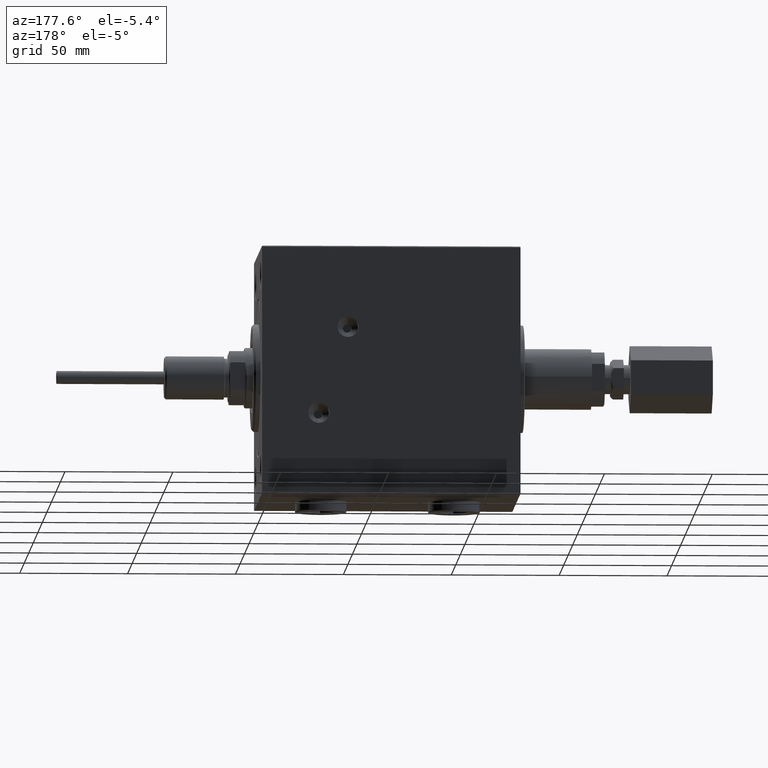
[diagram: clean part render]
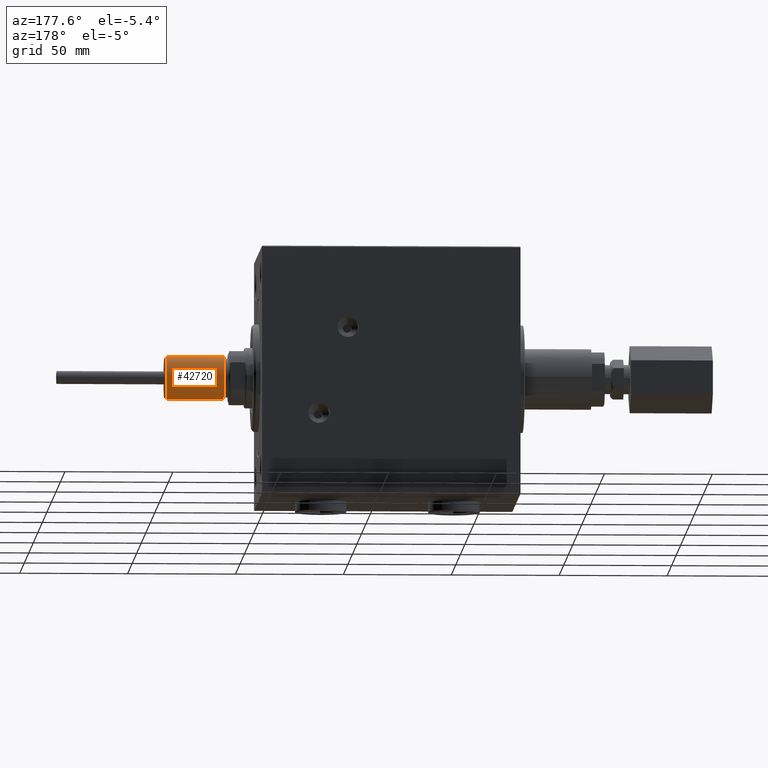
[diagram: same view with one face highlighted and labeled with its STEP entity id]
A machine part, auxiliary view. The second image highlights one B-rep face of the part: STEP entity #42720.
In plain terms, the highlighted cylindrical surface (edge-blend (fillet) strip) has radius 10 mm, axis along (1, -0, -0).
Its self-contained STEP definition (entity closure, byte-faithful):
#117 = DIRECTION ( 'NONE',  ( 1.000000000000000000, 0.000000000000000000, 0.000000000000000000 ) ) ;
#2001 = VERTEX_POINT ( 'NONE', #12070 ) ;
#4353 = ORIENTED_EDGE ( 'NONE', *, *, #25916, .F. ) ;
#4457 = DIRECTION ( 'NONE',  ( 1.000000000000000000, 0.000000000000000000, 0.000000000000000000 ) ) ;
#6050 = CARTESIAN_POINT ( 'NONE',  ( -10.00000000000000000, 0.000000000000000000, 27.50000000000000000 ) ) ;
#6292 = LINE ( 'NONE', #6050, #45545 ) ;
#6549 = CIRCLE ( 'NONE', #23880, 10.00000000000000000 ) ;
#8401 = CYLINDRICAL_SURFACE ( 'NONE', #38449, 10.00000000000000000 ) ;
#9270 = DIRECTION ( 'NONE',  ( -0.000000000000000000, -0.000000000000000000, -1.000000000000000000 ) ) ;
#10641 = DIRECTION ( 'NONE',  ( -0.000000000000000000, -0.000000000000000000, -1.000000000000000000 ) ) ;
#10737 = DIRECTION ( 'NONE',  ( 0.000000000000000000, 0.000000000000000000, 1.000000000000000000 ) ) ;
#12070 = CARTESIAN_POINT ( 'NONE',  ( -10.00000000000000000, 0.000000000000000000, 27.50000000000000000 ) ) ;
#14528 = CARTESIAN_POINT ( 'NONE',  ( 10.00000000000000000, 1.224646799147353256E-15, 27.50000000000000000 ) ) ;
#14814 = CARTESIAN_POINT ( 'NONE',  ( 10.00000000000000000, 1.224646799147353256E-15, 27.50000000000000000 ) ) ;
#17773 = CARTESIAN_POINT ( 'NONE',  ( -10.00000000000000000, 0.000000000000000000, 0.7999999999999986011 ) ) ;
#19712 = ORIENTED_EDGE ( 'NONE', *, *, #28265, .T. ) ;
#23880 = AXIS2_PLACEMENT_3D ( 'NONE', #26903, #38988, #4457 ) ;
#23924 = FACE_OUTER_BOUND ( 'NONE', #40336, .T. ) ;
#24364 = EDGE_CURVE ( 'NONE', #43922, #45650, #6549, .T. ) ;
#24725 = AXIS2_PLACEMENT_3D ( 'NONE', #33673, #10737, #117 ) ;
#25300 = VERTEX_POINT ( 'NONE', #14528 ) ;
#25903 = ORIENTED_EDGE ( 'NONE', *, *, #24364, .T. ) ;
#25916 = EDGE_CURVE ( 'NONE', #25300, #2001, #38912, .T. ) ;
#26903 = CARTESIAN_POINT ( 'NONE',  ( 0.000000000000000000, 0.000000000000000000, 0.7999999999999986011 ) ) ;
#28265 = EDGE_CURVE ( 'NONE', #25300, #43922, #44424, .T. ) ;
#29399 = VECTOR ( 'NONE', #10641, 1000.000000000000000 ) ;
#31576 = DIRECTION ( 'NONE',  ( -1.000000000000000000, 0.000000000000000000, 0.000000000000000000 ) ) ;
#33673 = CARTESIAN_POINT ( 'NONE',  ( 0.000000000000000000, 0.000000000000000000, 27.50000000000000000 ) ) ;
#34538 = DIRECTION ( 'NONE',  ( -0.000000000000000000, -0.000000000000000000, -1.000000000000000000 ) ) ;
#35285 = ORIENTED_EDGE ( 'NONE', *, *, #47182, .F. ) ;
#37995 = CARTESIAN_POINT ( 'NONE',  ( 0.000000000000000000, 0.000000000000000000, 27.50000000000000000 ) ) ;
#38449 = AXIS2_PLACEMENT_3D ( 'NONE', #37995, #34538, #31576 ) ;
#38912 = CIRCLE ( 'NONE', #24725, 10.00000000000000000 ) ;
#38988 = DIRECTION ( 'NONE',  ( -0.000000000000000000, -0.000000000000000000, 1.000000000000000000 ) ) ;
#40336 = EDGE_LOOP ( 'NONE', ( #4353, #19712, #25903, #35285 ) ) ;
#41409 = CARTESIAN_POINT ( 'NONE',  ( 10.00000000000000000, 1.224646799147353256E-15, 0.7999999999999986011 ) ) ;
#42720 = ADVANCED_FACE ( 'NONE', ( #23924 ), #8401, .T. ) ;
#43922 = VERTEX_POINT ( 'NONE', #41409 ) ;
#44424 = LINE ( 'NONE', #14814, #29399 ) ;
#45545 = VECTOR ( 'NONE', #9270, 1000.000000000000000 ) ;
#45650 = VERTEX_POINT ( 'NONE', #17773 ) ;
#47182 = EDGE_CURVE ( 'NONE', #2001, #45650, #6292, .T. ) ;